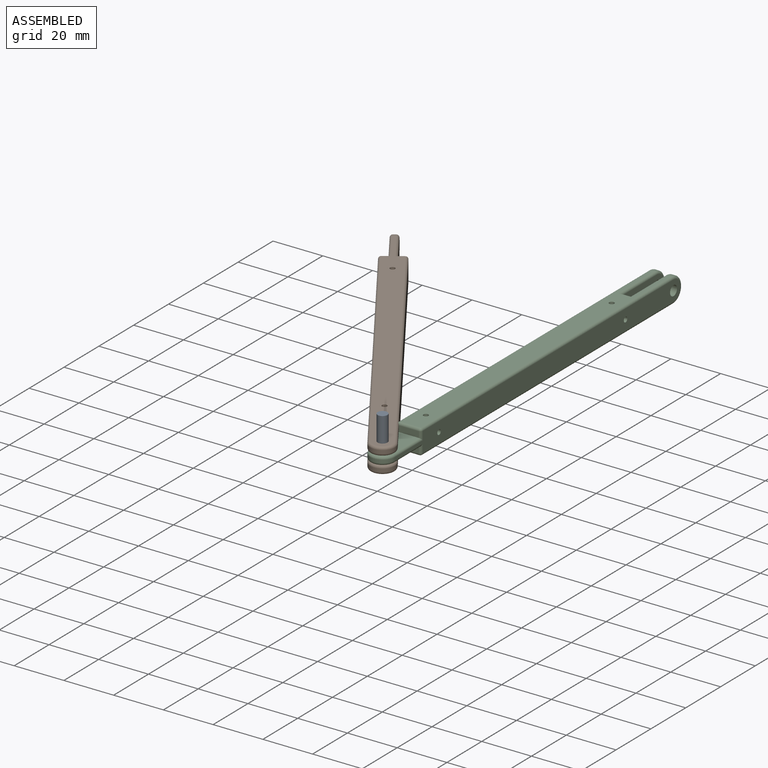
[diagram: assembled view]
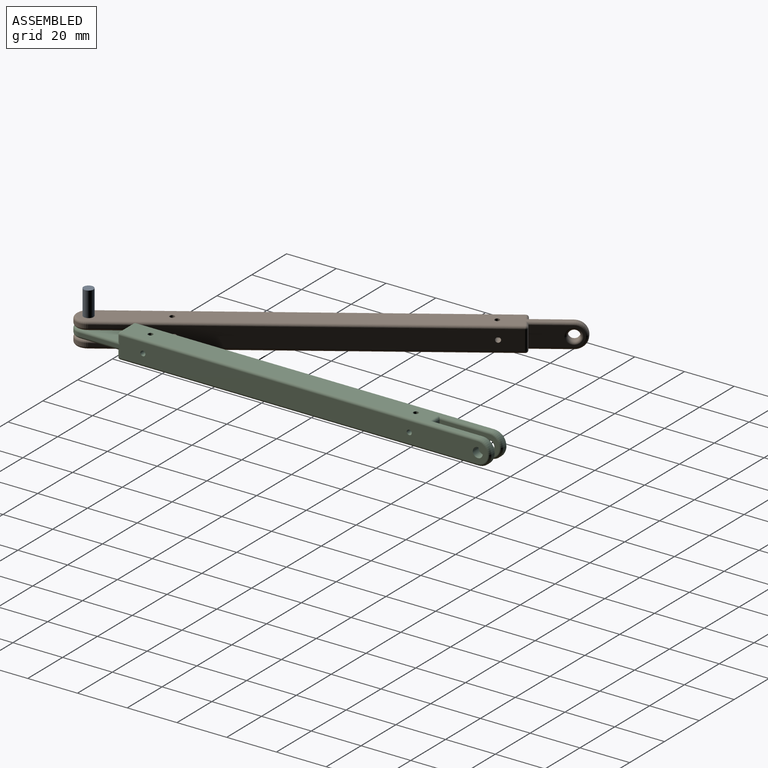
[diagram: assembled view, second angle]
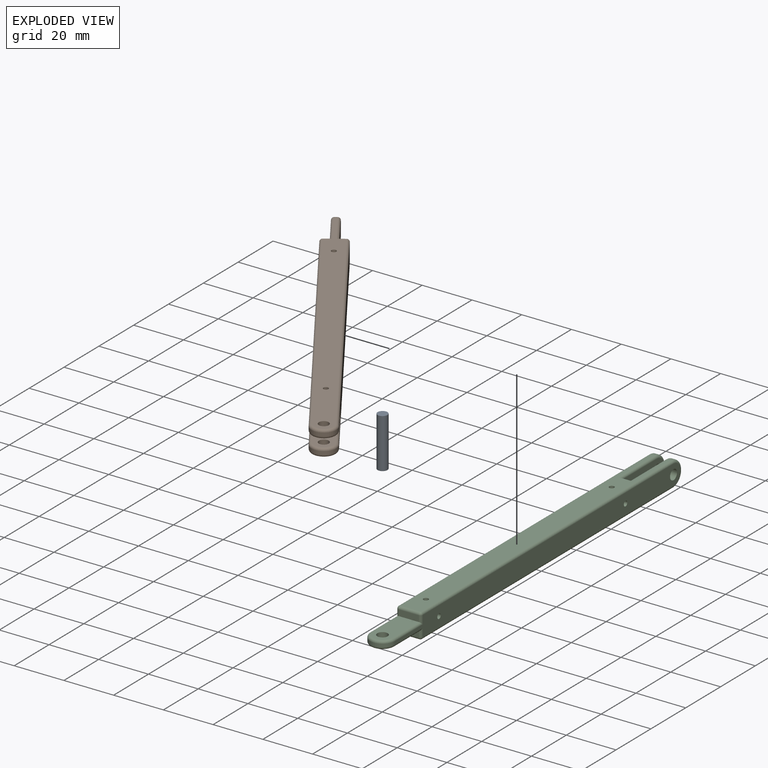
[diagram: exploded view]
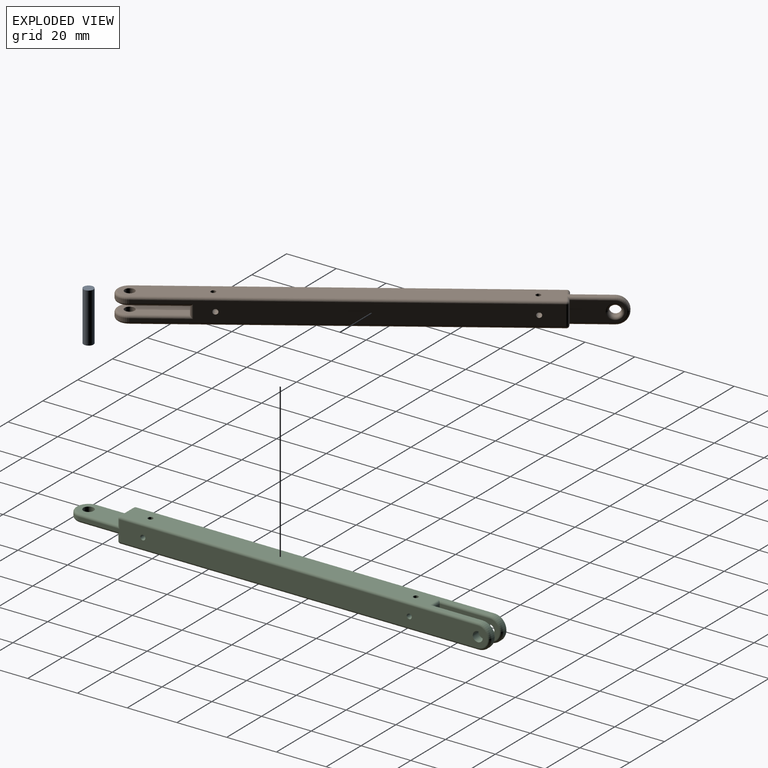
[diagram: exploded view, second angle]
ASSEMBLY  parts=3 mates=2
PART A: 3 faces, bbox 20x4x4 mm
  f0: cylinder r=2mm len=20mm, axis (-1,0,0), area 251.3mm2, adj f1,f2
  f1: plane 4x4mm, normal (1,0,0), area 12.6mm2, adj f0
  f2: plane 4x4mm, normal (-1,0,0), area 12.6mm2, adj f0
PART B: 52 faces, bbox 10.8x170.8x10.8 mm
  f0: cylinder r=1mm len=10mm, axis (0,0,1), area 56.8mm2, adj f3,f5,f20
  f1: plane 144x8mm, normal (-1,0,0), area 1032.3mm2, adj f12,f14,f19,f20,f24,f30,f37,f46
  f2: plane 8x2.4mm, normal (0,-1,0), area 19.2mm2, adj f7,f32,f38,f39
  f3: plane 164x8mm, normal (0,0,-1), area 1177.5mm2, adj f0,f13,f17,f18,f21,f23,f24,f27
  f4: plane 144x8mm, normal (1,0,0), area 1032.3mm2, adj f12,f14,f19,f20,f31,f38,f42,f43
  f5: plane 164x8mm, normal (0,0,1), area 1177.5mm2, adj f0,f13,f16,f18,f25,f29,f36,f37
  f6: plane 8x2.4mm, normal (0,-1,0), area 19.2mm2, adj f8,f23,f29,f30
  f7: plane 19x8mm, normal (1,0,0), area 131.3mm2, adj f2,f15,f28,f33,f36
  f8: plane 19x8mm, normal (-1,0,0), area 114.9mm2, adj f6,f21,f22,f25,f51
  f9: plane 24x8mm, normal (0,0,1), area 172.6mm2, adj f11,f17,f43,f44,f46
  f10: plane 24x8mm, normal (0,0,-1), area 172.6mm2, adj f11,f16,f47,f49,f50
  f11: plane 8x3.4mm, normal (0,1,0), area 27.2mm2, adj f9,f10,f45,f48
  f12: cylinder r=5mm len=10mm, axis (0,0,1), area 20.4mm2, adj f1,f4,f27,f44
  f13: cylinder r=5mm len=10mm, axis (1,0,0), area 18.8mm2, adj f3,f5,f22,f33
  f14: cylinder r=5mm len=10mm, axis (0,0,-1), area 20.4mm2, adj f1,f4,f40,f49
  f15: cylinder r=2.1mm len=4.2mm, axis (-1,0,0), area 29mm2, adj f7,f51
  f16: cylinder r=2mm len=4mm, axis (0,0,1), area 41.5mm2, adj f5,f10
  f17: cylinder r=2mm len=4mm, axis (0,0,1), area 41.5mm2, adj f3,f9
  f18: cylinder r=1mm len=10mm, axis (0,0,1), area 55.4mm2, adj f3,f5,f19
  f19: cylinder r=1mm len=10mm, axis (1,0,0), area 55.4mm2, adj f1,f4,f18
  f20: cylinder r=1mm len=10mm, axis (1,0,0), area 56.8mm2, adj f0,f1,f4
  f21: cylinder r=1mm len=16mm, axis (0,1,0), area 24.1mm2, adj f3,f8,f22,f23
  f22: torus R=4mm, axis (1,0,0), area 22.9mm2, adj f8,f13,f21,f25
  f23: cylinder r=1mm len=3.4mm, axis (1,0,0), area 4.3mm2, adj f3,f6,f21,f26
  f24: cylinder r=1mm len=144mm, axis (0,1,0), area 226.2mm2, adj f1,f3,f26,f27
  f25: cylinder r=1mm len=16mm, axis (0,-1,0), area 24.1mm2, adj f5,f8,f22,f29
  f26: sphere r=1mm, area 1.6mm2, adj f23,f24,f30
  f27: torus R=4mm, axis (0,0,1), area 22.9mm2, adj f3,f12,f24,f31
  f28: cylinder r=1mm len=16mm, axis (0,-1,0), area 24.1mm2, adj f3,f7,f32,f33
  f29: cylinder r=1mm len=3.4mm, axis (-1,0,0), area 4.3mm2, adj f5,f6,f25,f34
  f30: cylinder r=1mm len=8mm, axis (0,0,-1), area 12.6mm2, adj f1,f6,f26,f34
  f31: cylinder r=1mm len=144mm, axis (0,-1,0), area 226.2mm2, adj f3,f4,f27,f35
  f32: cylinder r=1mm len=3.4mm, axis (1,0,0), area 4.3mm2, adj f2,f3,f28,f35
  f33: torus R=4mm, axis (1,0,0), area 22.9mm2, adj f7,f13,f28,f36
  f34: sphere r=1mm, area 1.6mm2, adj f29,f30,f37
  f35: sphere r=1mm, area 1.6mm2, adj f31,f32,f38
  f36: cylinder r=1mm len=16mm, axis (0,1,0), area 24.1mm2, adj f5,f7,f33,f39
  f37: cylinder r=1mm len=144mm, axis (0,-1,0), area 226.2mm2, adj f1,f5,f34,f40
  f38: cylinder r=1mm len=8mm, axis (0,0,1), area 12.6mm2, adj f2,f4,f35,f41
  f39: cylinder r=1mm len=3.4mm, axis (-1,0,0), area 4.3mm2, adj f2,f5,f36,f41
  f40: torus R=4mm, axis (0,0,1), area 22.9mm2, adj f5,f14,f37,f42
  f41: sphere r=1mm, area 1.6mm2, adj f38,f39,f42
  f42: cylinder r=1mm len=144mm, axis (0,1,0), area 226.2mm2, adj f4,f5,f40,f41
  f43: cylinder r=1mm len=21mm, axis (0,-1,0), area 32mm2, adj f4,f9,f44,f45
  f44: torus R=4mm, axis (0,0,1), area 22.9mm2, adj f9,f12,f43,f46
  f45: cylinder r=1mm len=5.4mm, axis (0,0,-1), area 6.5mm2, adj f4,f11,f43,f47
  f46: cylinder r=1mm len=21mm, axis (0,1,0), area 32mm2, adj f1,f9,f44,f48
  f47: cylinder r=1mm len=21mm, axis (0,1,0), area 32mm2, adj f4,f10,f45,f49
  f48: cylinder r=1mm len=5.4mm, axis (0,0,1), area 6.5mm2, adj f1,f11,f46,f50
  f49: torus R=4mm, axis (0,0,1), area 22.9mm2, adj f10,f14,f47,f50
  f50: cylinder r=1mm len=21mm, axis (0,-1,0), area 32mm2, adj f1,f10,f48,f49
  f51: torus R=3.1mm, axis (1,0,0), area 24.3mm2, adj f8,f15
PART C: 52 faces, bbox 10.8x170.8x10.8 mm
  f0: cylinder r=1mm len=10mm, axis (-1,0,0), area 56.8mm2, adj f3,f5,f20
  f1: plane 144x8mm, normal (0,0,-1), area 1032.3mm2, adj f12,f14,f19,f20,f24,f30,f37,f46
  f2: plane 8x2.4mm, normal (0,-1,0), area 19.2mm2, adj f7,f32,f38,f39
  f3: plane 164x8mm, normal (1,0,0), area 1177.5mm2, adj f0,f13,f17,f18,f21,f23,f24,f27
  f4: plane 144x8mm, normal (0,0,1), area 1032.3mm2, adj f12,f14,f19,f20,f31,f38,f42,f43
  f5: plane 164x8mm, normal (-1,0,0), area 1177.5mm2, adj f0,f13,f16,f18,f25,f29,f36,f37
  f6: plane 8x2.4mm, normal (0,-1,0), area 19.2mm2, adj f8,f23,f29,f30
  f7: plane 19x8mm, normal (0,0,1), area 131.3mm2, adj f2,f15,f28,f33,f36
  f8: plane 19x8mm, normal (0,0,-1), area 114.9mm2, adj f6,f21,f22,f25,f51
  f9: plane 24x8mm, normal (-1,0,0), area 172.6mm2, adj f11,f17,f43,f44,f46
  f10: plane 24x8mm, normal (1,0,0), area 172.6mm2, adj f11,f16,f47,f49,f50
  f11: plane 8x3.4mm, normal (0,1,0), area 27.2mm2, adj f9,f10,f45,f48
  f12: cylinder r=5mm len=10mm, axis (-1,0,0), area 20.4mm2, adj f1,f4,f27,f44
  f13: cylinder r=5mm len=10mm, axis (0,0,1), area 18.8mm2, adj f3,f5,f22,f33
  f14: cylinder r=5mm len=10mm, axis (1,0,0), area 20.4mm2, adj f1,f4,f40,f49
  f15: cylinder r=2.1mm len=4.2mm, axis (0,0,-1), area 29mm2, adj f7,f51
  f16: cylinder r=2mm len=4mm, axis (-1,0,0), area 41.5mm2, adj f5,f10
  f17: cylinder r=2mm len=4mm, axis (-1,0,0), area 41.5mm2, adj f3,f9
  f18: cylinder r=1mm len=10mm, axis (-1,0,0), area 55.4mm2, adj f3,f5,f19
  f19: cylinder r=1mm len=10mm, axis (0,0,1), area 55.4mm2, adj f1,f4,f18
  f20: cylinder r=1mm len=10mm, axis (0,0,1), area 56.8mm2, adj f0,f1,f4
  f21: cylinder r=1mm len=16mm, axis (0,1,0), area 24.1mm2, adj f3,f8,f22,f23
  f22: torus R=4mm, axis (0,0,1), area 22.9mm2, adj f8,f13,f21,f25
  f23: cylinder r=1mm len=3.4mm, axis (0,0,1), area 4.3mm2, adj f3,f6,f21,f26
  f24: cylinder r=1mm len=144mm, axis (0,1,0), area 226.2mm2, adj f1,f3,f26,f27
  f25: cylinder r=1mm len=16mm, axis (0,-1,0), area 24.1mm2, adj f5,f8,f22,f29
  f26: sphere r=1mm, area 1.6mm2, adj f23,f24,f30
  f27: torus R=4mm, axis (-1,0,0), area 22.9mm2, adj f3,f12,f24,f31
  f28: cylinder r=1mm len=16mm, axis (0,-1,0), area 24.1mm2, adj f3,f7,f32,f33
  f29: cylinder r=1mm len=3.4mm, axis (0,0,-1), area 4.3mm2, adj f5,f6,f25,f34
  f30: cylinder r=1mm len=8mm, axis (1,0,0), area 12.6mm2, adj f1,f6,f26,f34
  f31: cylinder r=1mm len=144mm, axis (0,-1,0), area 226.2mm2, adj f3,f4,f27,f35
  f32: cylinder r=1mm len=3.4mm, axis (0,0,1), area 4.3mm2, adj f2,f3,f28,f35
  f33: torus R=4mm, axis (0,0,1), area 22.9mm2, adj f7,f13,f28,f36
  f34: sphere r=1mm, area 1.6mm2, adj f29,f30,f37
  f35: sphere r=1mm, area 1.6mm2, adj f31,f32,f38
  f36: cylinder r=1mm len=16mm, axis (0,1,0), area 24.1mm2, adj f5,f7,f33,f39
  f37: cylinder r=1mm len=144mm, axis (0,-1,0), area 226.2mm2, adj f1,f5,f34,f40
  f38: cylinder r=1mm len=8mm, axis (-1,0,0), area 12.6mm2, adj f2,f4,f35,f41
  f39: cylinder r=1mm len=3.4mm, axis (0,0,-1), area 4.3mm2, adj f2,f5,f36,f41
  f40: torus R=4mm, axis (-1,0,0), area 22.9mm2, adj f5,f14,f37,f42
  f41: sphere r=1mm, area 1.6mm2, adj f38,f39,f42
  f42: cylinder r=1mm len=144mm, axis (0,1,0), area 226.2mm2, adj f4,f5,f40,f41
  f43: cylinder r=1mm len=21mm, axis (0,-1,0), area 32mm2, adj f4,f9,f44,f45
  f44: torus R=4mm, axis (-1,0,0), area 22.9mm2, adj f9,f12,f43,f46
  f45: cylinder r=1mm len=5.4mm, axis (1,0,0), area 6.5mm2, adj f4,f11,f43,f47
  f46: cylinder r=1mm len=21mm, axis (0,1,0), area 32mm2, adj f1,f9,f44,f48
  f47: cylinder r=1mm len=21mm, axis (0,1,0), area 32mm2, adj f4,f10,f45,f49
  f48: cylinder r=1mm len=5.4mm, axis (-1,0,0), area 6.5mm2, adj f1,f11,f46,f50
  f49: torus R=4mm, axis (-1,0,0), area 22.9mm2, adj f10,f14,f47,f50
  f50: cylinder r=1mm len=21mm, axis (0,-1,0), area 32mm2, adj f1,f10,f48,f49
  f51: torus R=3.1mm, axis (0,0,1), area 24.3mm2, adj f8,f15
PLACE A rot(axis=(0.58,-0.58,0.58),120deg) t=(24.62,55.98,31.88)mm
PLACE B rot(axis=(0,0,-1),146.4deg) t=(-153.98,170,16.88)mm
PLACE C rot(axis=(0,0,-1),0deg) t=(-62.69,47.56,36.78)mm fixed
MATE cylindrical A.f0 <-> B.f16  axis (0,0,-1) through (-62.69,32.56,31.88)mm
MATE revolute C.f13 <-> B.f14  axis (0,0,1) through (-62.69,32.56,36.18)mm
